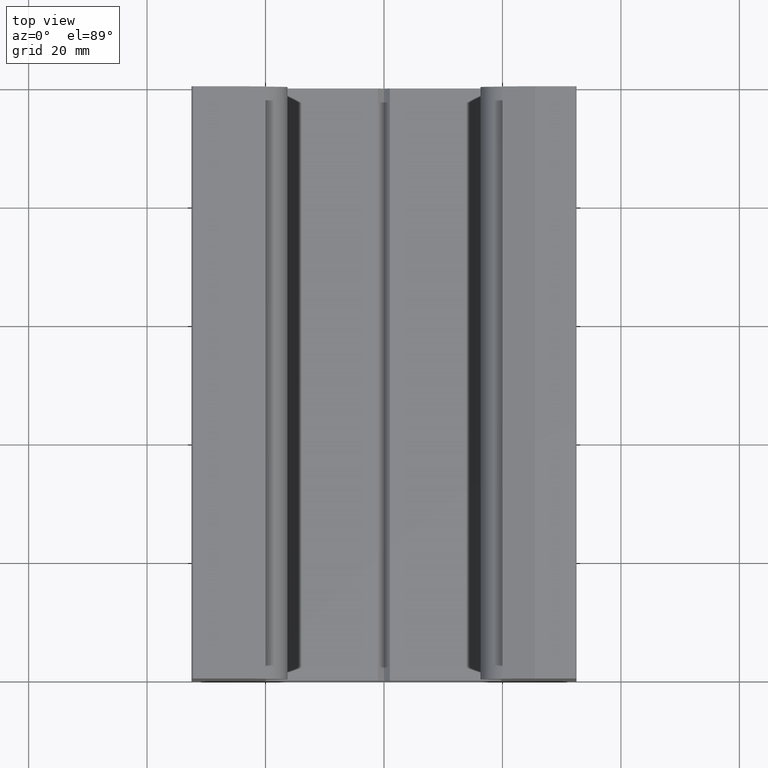
[diagram: clean part render]
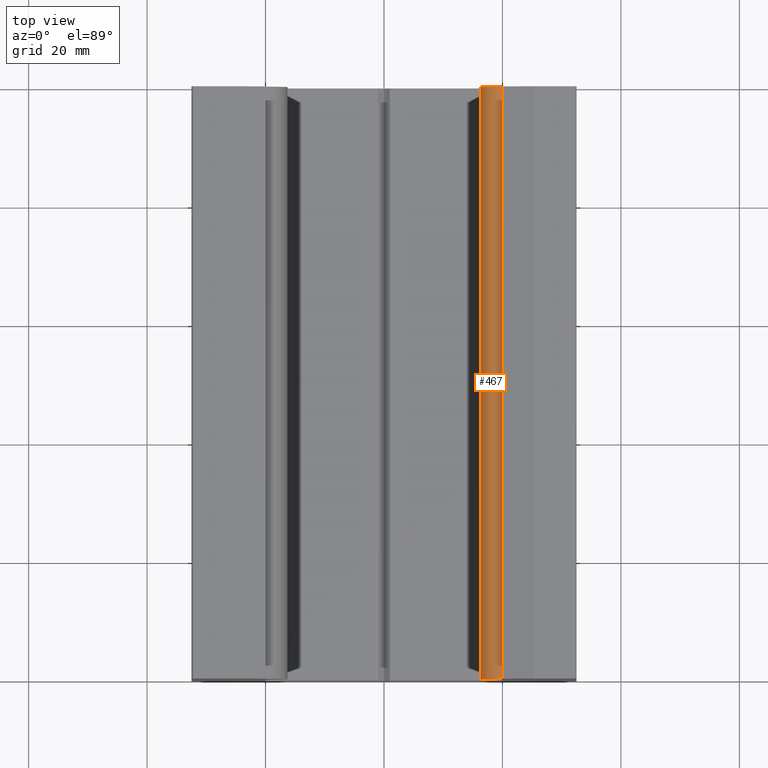
[diagram: same view with one face highlighted and labeled with its STEP entity id]
A machine part, top view. The second image highlights one B-rep face of the part: STEP entity #467.
In plain terms, the highlighted cylindrical surface (edge-blend (fillet) strip) has radius 5 mm, axis along (0, 1, 0).
Its self-contained STEP definition (entity closure, byte-faithful):
#31=FACE_OUTER_BOUND('',#56,.T.);
#56=EDGE_LOOP('',(#318,#319,#320,#321));
#81=CIRCLE('',#516,5.);
#82=CIRCLE('',#517,5.);
#97=LINE('',#697,#150);
#98=LINE('',#701,#151);
#150=VECTOR('',#560,10.);
#151=VECTOR('',#563,10.);
#203=VERTEX_POINT('',#695);
#204=VERTEX_POINT('',#696);
#205=VERTEX_POINT('',#698);
#206=VERTEX_POINT('',#700);
#249=EDGE_CURVE('',#203,#204,#97,.T.);
#250=EDGE_CURVE('',#205,#204,#81,.T.);
#251=EDGE_CURVE('',#206,#205,#98,.T.);
#252=EDGE_CURVE('',#203,#206,#82,.T.);
#318=ORIENTED_EDGE('',*,*,#249,.T.);
#319=ORIENTED_EDGE('',*,*,#250,.F.);
#320=ORIENTED_EDGE('',*,*,#251,.F.);
#321=ORIENTED_EDGE('',*,*,#252,.F.);
#456=CYLINDRICAL_SURFACE('',#515,5.);
#467=ADVANCED_FACE('',(#31),#456,.T.);
#515=AXIS2_PLACEMENT_3D('',#694,#558,#559);
#516=AXIS2_PLACEMENT_3D('',#699,#561,#562);
#517=AXIS2_PLACEMENT_3D('',#702,#564,#565);
#558=DIRECTION('center_axis',(0.,1.,0.));
#559=DIRECTION('ref_axis',(-1.,0.,1.22464679914735E-16));
#560=DIRECTION('',(0.,1.,0.));
#561=DIRECTION('center_axis',(0.,1.,0.));
#562=DIRECTION('ref_axis',(1.,0.,0.));
#563=DIRECTION('',(0.,1.,0.));
#564=DIRECTION('center_axis',(0.,-1.,0.));
#565=DIRECTION('ref_axis',(1.,0.,0.));
#694=CARTESIAN_POINT('Origin',(21.25,0.,7.5));
#695=CARTESIAN_POINT('',(20.,0.,12.3412291827593));
#696=CARTESIAN_POINT('',(20.,100.,12.3412291827593));
#697=CARTESIAN_POINT('',(20.,0.,12.3412291827593));
#698=CARTESIAN_POINT('',(20.,100.,2.65877081724073));
#699=CARTESIAN_POINT('Origin',(21.25,100.,7.5));
#700=CARTESIAN_POINT('',(20.,0.,2.65877081724073));
#701=CARTESIAN_POINT('',(20.,0.,2.65877081724073));
#702=CARTESIAN_POINT('Origin',(21.25,0.,7.5));